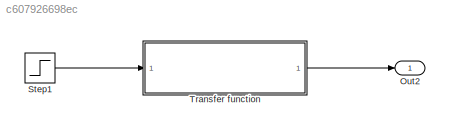
MODEL slx_c607926698ec
KIND model
CONFIG AbsTol = auto
CONFIG FixedStep = auto
CONFIG MaxStep = auto
CONFIG MinStep = auto
CONFIG RelTol = 1e-3
CONFIG SampleTimeConstraint = Unconstrained
CONFIG Solver = FixedStepDiscrete
CONFIG SolverMode = Auto
CONFIG SolverName = FixedStepDiscrete
CONFIG StartTime = 0.0
CONFIG StopTime = 10.0
BLOCK [Outport] Out2
  IconDisplay = Port number
BLOCK [Step] Step1
  SampleTime = 0
BLOCK [ModelReference] Transfer function
  ModelNameDialog = Transfer_function.slx
  ModelReferenceVersion = 1.5
  Ports = [1, 1]
  Variant = off
LINE Step1:1 -> Transfer function:1
LINE Transfer function:1 -> Out2:1
